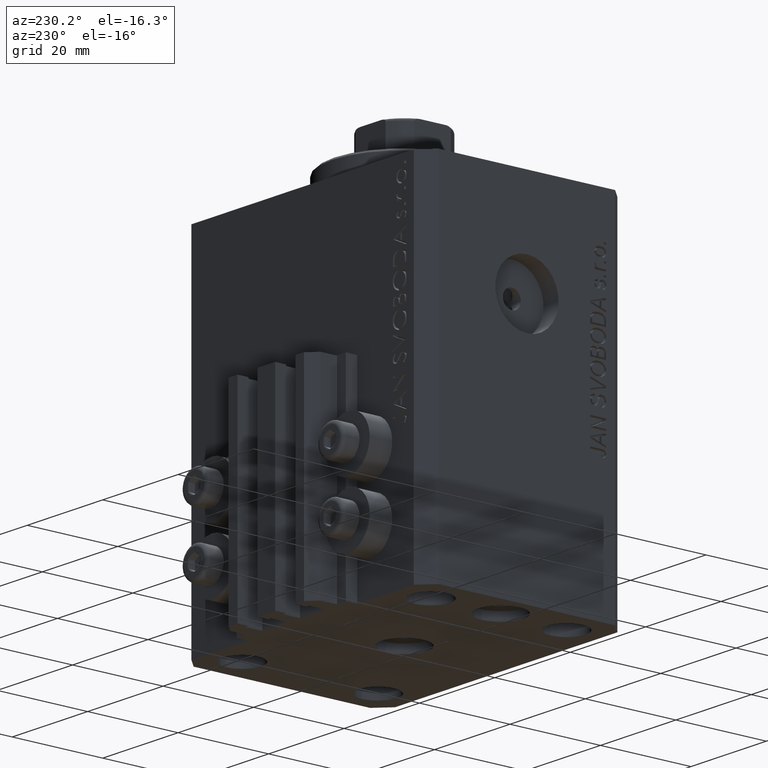
[diagram: clean part render]
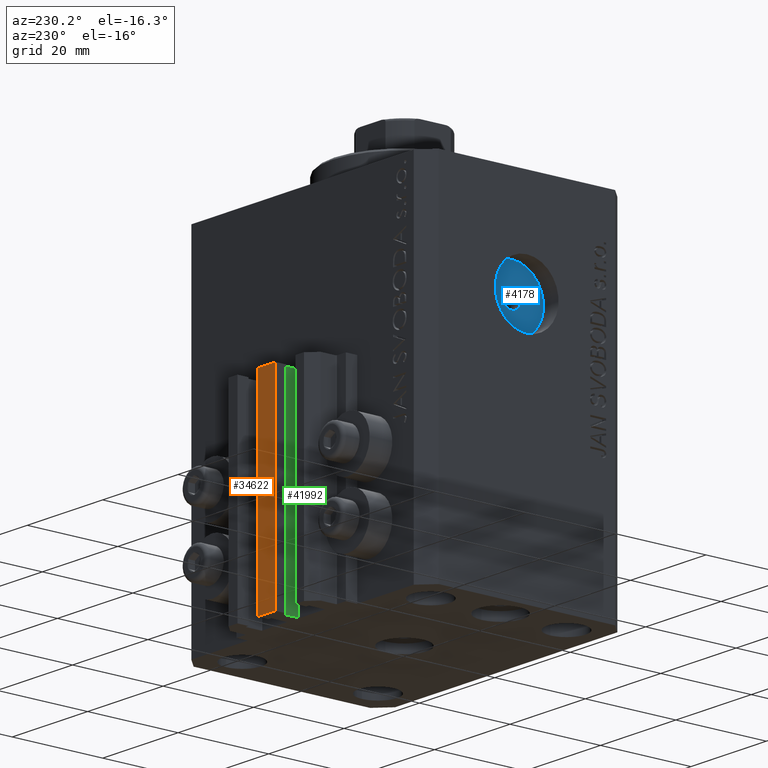
[diagram: same view with three faces highlighted in distinct colors, each labeled with its STEP entity id]
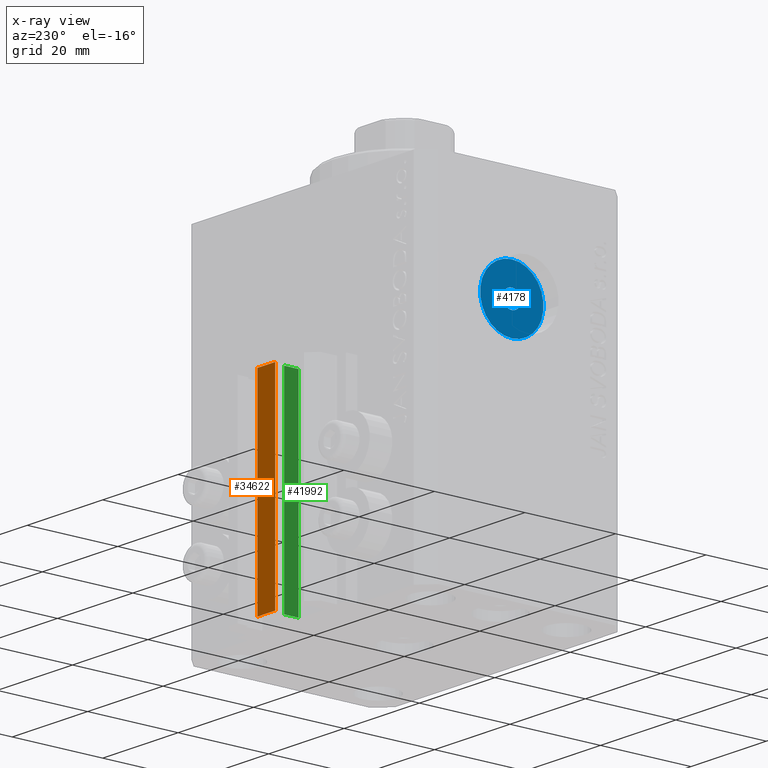
[diagram: x-ray of the same camera — body ghosted, the three highlighted faces saturated]
A machine part, auxiliary view with three faces highlighted in distinct colors.
The next image is the same camera in x-ray (body ghosted, the three faces saturated) — at least one of them is partly hidden behind the body in this view.
Their STEP definitions:

[orange] entity #34622 — the highlighted planar face has unit normal (0, -1, 0).
#437 = CARTESIAN_POINT ( 'NONE',  ( -2.350000000000003197, 30.49999999999949907, -77.00000000000000000 ) ) ;
#2167 = EDGE_CURVE ( 'NONE', #21555, #31573, #21137, .T. ) ;
#7940 = FACE_OUTER_BOUND ( 'NONE', #38259, .T. ) ;
#9980 = LINE ( 'NONE', #31324, #28495 ) ;
#12866 = DIRECTION ( 'NONE',  ( 0.000000000000000000, 0.000000000000000000, 1.000000000000000000 ) ) ;
#12957 = VECTOR ( 'NONE', #41328, 1000.000000000000000 ) ;
#13993 = ORIENTED_EDGE ( 'NONE', *, *, #17329, .F. ) ;
#14311 = AXIS2_PLACEMENT_3D ( 'NONE', #43476, #22333, #14427 ) ;
#14334 = VECTOR ( 'NONE', #15050, 1000.000000000000000 ) ;
#14427 = DIRECTION ( 'NONE',  ( 0.000000000000000000, -0.000000000000000000, -1.000000000000000000 ) ) ;
#15050 = DIRECTION ( 'NONE',  ( 1.000000000000000000, 0.000000000000000000, 0.000000000000000000 ) ) ;
#16099 = LINE ( 'NONE', #45392, #12957 ) ;
#17329 = EDGE_CURVE ( 'NONE', #24026, #21555, #29215, .T. ) ;
#18205 = EDGE_CURVE ( 'NONE', #24026, #33842, #9980, .T. ) ;
#18262 = PLANE ( 'NONE',  #14311 ) ;
#20188 = CARTESIAN_POINT ( 'NONE',  ( 2.349999999999999645, 30.49999999999949907, -77.00000000000000000 ) ) ;
#20572 = CARTESIAN_POINT ( 'NONE',  ( -2.350000000000003197, 30.49999999999949907, -77.00000000000000000 ) ) ;
#20721 = CARTESIAN_POINT ( 'NONE',  ( 2.349999999999999645, 30.49999999999949907, -33.00000000000000000 ) ) ;
#21137 = LINE ( 'NONE', #20188, #28900 ) ;
#21555 = VERTEX_POINT ( 'NONE', #45673 ) ;
#22333 = DIRECTION ( 'NONE',  ( 0.000000000000000000, -1.000000000000000000, 0.000000000000000000 ) ) ;
#24026 = VERTEX_POINT ( 'NONE', #20572 ) ;
#24800 = ORIENTED_EDGE ( 'NONE', *, *, #2167, .F. ) ;
#27949 = ORIENTED_EDGE ( 'NONE', *, *, #42260, .T. ) ;
#28495 = VECTOR ( 'NONE', #12866, 1000.000000000000000 ) ;
#28900 = VECTOR ( 'NONE', #35786, 1000.000000000000000 ) ;
#29215 = LINE ( 'NONE', #437, #14334 ) ;
#31324 = CARTESIAN_POINT ( 'NONE',  ( -2.350000000000003197, 30.49999999999949907, -77.00000000000000000 ) ) ;
#31573 = VERTEX_POINT ( 'NONE', #20721 ) ;
#33842 = VERTEX_POINT ( 'NONE', #37570 ) ;
#34179 = ORIENTED_EDGE ( 'NONE', *, *, #18205, .T. ) ;
#34622 = ADVANCED_FACE ( 'NONE', ( #7940 ), #18262, .F. ) ;
#35786 = DIRECTION ( 'NONE',  ( 0.000000000000000000, 0.000000000000000000, 1.000000000000000000 ) ) ;
#37570 = CARTESIAN_POINT ( 'NONE',  ( -2.350000000000003197, 30.49999999999949907, -33.00000000000000000 ) ) ;
#38259 = EDGE_LOOP ( 'NONE', ( #27949, #24800, #13993, #34179 ) ) ;
#41328 = DIRECTION ( 'NONE',  ( 1.000000000000000000, 0.000000000000000000, 0.000000000000000000 ) ) ;
#42260 = EDGE_CURVE ( 'NONE', #33842, #31573, #16099, .T. ) ;
#43476 = CARTESIAN_POINT ( 'NONE',  ( -2.350000000000003197, 30.49999999999949907, -77.00000000000000000 ) ) ;
#45392 = CARTESIAN_POINT ( 'NONE',  ( -2.350000000000003197, 30.49999999999949907, -33.00000000000000000 ) ) ;
#45673 = CARTESIAN_POINT ( 'NONE',  ( 2.349999999999999645, 30.49999999999949907, -77.00000000000000000 ) ) ;

[blue] entity #4178 — the highlighted planar face has unit normal (-1, 0, 0).
#475 = DIRECTION ( 'NONE',  ( 0.000000000000000000, 0.000000000000000000, 1.000000000000000000 ) ) ;
#722 = CARTESIAN_POINT ( 'NONE',  ( -28.49999999999650413, 0.000000000000000000, -22.00000000000000000 ) ) ;
#1180 = AXIS2_PLACEMENT_3D ( 'NONE', #13020, #35357, #27659 ) ;
#3655 = EDGE_LOOP ( 'NONE', ( #39875, #3782 ) ) ;
#3781 = AXIS2_PLACEMENT_3D ( 'NONE', #722, #36944, #475 ) ;
#3782 = ORIENTED_EDGE ( 'NONE', *, *, #7181, .T. ) ;
#3983 = VERTEX_POINT ( 'NONE', #45357 ) ;
#4178 = ADVANCED_FACE ( 'NONE', ( #39825, #5985 ), #17964, .T. ) ;
#4707 = DIRECTION ( 'NONE',  ( -1.000000000000000000, 0.000000000000000000, 0.000000000000000000 ) ) ;
#5985 = FACE_OUTER_BOUND ( 'NONE', #3655, .T. ) ;
#7181 = EDGE_CURVE ( 'NONE', #3983, #42311, #33631, .T. ) ;
#8598 = ORIENTED_EDGE ( 'NONE', *, *, #36782, .F. ) ;
#11969 = CARTESIAN_POINT ( 'NONE',  ( -28.49999999999650413, 2.449293598294706414E-16, -23.99999999999999645 ) ) ;
#13020 = CARTESIAN_POINT ( 'NONE',  ( -28.49999999999650413, 0.000000000000000000, -22.00000000000000000 ) ) ;
#13384 = DIRECTION ( 'NONE',  ( -1.000000000000000000, 0.000000000000000000, 0.000000000000000000 ) ) ;
#16059 = CARTESIAN_POINT ( 'NONE',  ( -28.49999999999650413, 0.000000000000000000, -22.00000000000000000 ) ) ;
#16998 = CARTESIAN_POINT ( 'NONE',  ( -28.49999999999650413, 0.000000000000000000, -22.00000000000000000 ) ) ;
#17927 = AXIS2_PLACEMENT_3D ( 'NONE', #16059, #13384, #34304 ) ;
#17964 = PLANE ( 'NONE',  #25136 ) ;
#18982 = CIRCLE ( 'NONE', #20498, 1.999999999999998224 ) ;
#19064 = CARTESIAN_POINT ( 'NONE',  ( -28.49999999999650413, 0.000000000000000000, -20.00000000000000000 ) ) ;
#19466 = CIRCLE ( 'NONE', #17927, 1.999999999999998224 ) ;
#19698 = CARTESIAN_POINT ( 'NONE',  ( -28.49999999999650413, 0.000000000000000000, -15.00000000000000000 ) ) ;
#20366 = EDGE_LOOP ( 'NONE', ( #39165, #8598 ) ) ;
#20498 = AXIS2_PLACEMENT_3D ( 'NONE', #37096, #4707, #23383 ) ;
#21319 = DIRECTION ( 'NONE',  ( -1.000000000000000000, 0.000000000000000000, 0.000000000000000000 ) ) ;
#23383 = DIRECTION ( 'NONE',  ( 0.000000000000000000, 0.000000000000000000, 1.000000000000000000 ) ) ;
#25136 = AXIS2_PLACEMENT_3D ( 'NONE', #16998, #21319, #32108 ) ;
#26090 = EDGE_CURVE ( 'NONE', #46411, #39298, #19466, .T. ) ;
#27659 = DIRECTION ( 'NONE',  ( 0.000000000000000000, 0.000000000000000000, 1.000000000000000000 ) ) ;
#28967 = EDGE_CURVE ( 'NONE', #42311, #3983, #38721, .T. ) ;
#32108 = DIRECTION ( 'NONE',  ( 0.000000000000000000, 0.000000000000000000, 1.000000000000000000 ) ) ;
#33631 = CIRCLE ( 'NONE', #3781, 6.999999999999999112 ) ;
#34304 = DIRECTION ( 'NONE',  ( 0.000000000000000000, 0.000000000000000000, 1.000000000000000000 ) ) ;
#35357 = DIRECTION ( 'NONE',  ( -1.000000000000000000, 0.000000000000000000, 0.000000000000000000 ) ) ;
#36782 = EDGE_CURVE ( 'NONE', #39298, #46411, #18982, .T. ) ;
#36944 = DIRECTION ( 'NONE',  ( -1.000000000000000000, 0.000000000000000000, 0.000000000000000000 ) ) ;
#37096 = CARTESIAN_POINT ( 'NONE',  ( -28.49999999999650413, 0.000000000000000000, -22.00000000000000000 ) ) ;
#38721 = CIRCLE ( 'NONE', #1180, 6.999999999999999112 ) ;
#39165 = ORIENTED_EDGE ( 'NONE', *, *, #26090, .F. ) ;
#39298 = VERTEX_POINT ( 'NONE', #11969 ) ;
#39825 = FACE_BOUND ( 'NONE', #20366, .T. ) ;
#39875 = ORIENTED_EDGE ( 'NONE', *, *, #28967, .T. ) ;
#42311 = VERTEX_POINT ( 'NONE', #19698 ) ;
#45357 = CARTESIAN_POINT ( 'NONE',  ( -28.49999999999650413, 8.572527594031474176E-16, -28.99999999999999645 ) ) ;
#46411 = VERTEX_POINT ( 'NONE', #19064 ) ;

[green] entity #41992 — the highlighted planar face has unit normal (-1, 0, 0).
#52 = VECTOR ( 'NONE', #40924, 1000.000000000000000 ) ;
#883 = DIRECTION ( 'NONE',  ( -1.000000000000000000, 6.776263578034385456E-17, 0.000000000000000000 ) ) ;
#1499 = VERTEX_POINT ( 'NONE', #8442 ) ;
#2074 = EDGE_LOOP ( 'NONE', ( #26803, #21648, #37008, #14375 ) ) ;
#3022 = CARTESIAN_POINT ( 'NONE',  ( -1.600000000000000533, 27.89999999999950120, -77.00000000000000000 ) ) ;
#4012 = CARTESIAN_POINT ( 'NONE',  ( -1.600000000000003197, 27.89999999999950120, -77.00000000000000000 ) ) ;
#7394 = LINE ( 'NONE', #47231, #20111 ) ;
#8442 = CARTESIAN_POINT ( 'NONE',  ( -1.600000000000000755, 24.69999999999949480, -33.00000000000000000 ) ) ;
#9949 = EDGE_CURVE ( 'NONE', #39479, #45037, #14278, .T. ) ;
#11651 = LINE ( 'NONE', #4012, #28939 ) ;
#14278 = LINE ( 'NONE', #3022, #52 ) ;
#14375 = ORIENTED_EDGE ( 'NONE', *, *, #22276, .T. ) ;
#14766 = LINE ( 'NONE', #29388, #26728 ) ;
#18654 = DIRECTION ( 'NONE',  ( 0.000000000000000000, 0.000000000000000000, 1.000000000000000000 ) ) ;
#20104 = CARTESIAN_POINT ( 'NONE',  ( -1.600000000000000755, 24.69999999999949480, -77.00000000000000000 ) ) ;
#20111 = VECTOR ( 'NONE', #18654, 1000.000000000000000 ) ;
#21648 = ORIENTED_EDGE ( 'NONE', *, *, #33477, .F. ) ;
#22276 = EDGE_CURVE ( 'NONE', #45037, #1499, #7394, .T. ) ;
#23401 = PLANE ( 'NONE',  #45188 ) ;
#26728 = VECTOR ( 'NONE', #29614, 1000.000000000000000 ) ;
#26803 = ORIENTED_EDGE ( 'NONE', *, *, #40963, .F. ) ;
#28939 = VECTOR ( 'NONE', #44085, 1000.000000000000000 ) ;
#29388 = CARTESIAN_POINT ( 'NONE',  ( -1.600000000000000533, 27.89999999999950120, -33.00000000000000000 ) ) ;
#29614 = DIRECTION ( 'NONE',  ( -6.776263578034385456E-17, -1.000000000000000000, 0.000000000000000000 ) ) ;
#30341 = FACE_OUTER_BOUND ( 'NONE', #2074, .T. ) ;
#30826 = CARTESIAN_POINT ( 'NONE',  ( -1.600000000000000533, 27.89999999999950120, -77.00000000000000000 ) ) ;
#33477 = EDGE_CURVE ( 'NONE', #39479, #41384, #11651, .T. ) ;
#35474 = CARTESIAN_POINT ( 'NONE',  ( -1.600000000000003197, 27.89999999999950120, -77.00000000000000000 ) ) ;
#37008 = ORIENTED_EDGE ( 'NONE', *, *, #9949, .T. ) ;
#38068 = DIRECTION ( 'NONE',  ( -6.776263578034385456E-17, -1.000000000000000000, 0.000000000000000000 ) ) ;
#39479 = VERTEX_POINT ( 'NONE', #35474 ) ;
#40924 = DIRECTION ( 'NONE',  ( -6.776263578034385456E-17, -1.000000000000000000, 0.000000000000000000 ) ) ;
#40963 = EDGE_CURVE ( 'NONE', #41384, #1499, #14766, .T. ) ;
#41384 = VERTEX_POINT ( 'NONE', #46354 ) ;
#41992 = ADVANCED_FACE ( 'NONE', ( #30341 ), #23401, .T. ) ;
#44085 = DIRECTION ( 'NONE',  ( 0.000000000000000000, 0.000000000000000000, 1.000000000000000000 ) ) ;
#45037 = VERTEX_POINT ( 'NONE', #20104 ) ;
#45188 = AXIS2_PLACEMENT_3D ( 'NONE', #30826, #883, #38068 ) ;
#46354 = CARTESIAN_POINT ( 'NONE',  ( -1.600000000000003197, 27.89999999999950120, -33.00000000000000000 ) ) ;
#47231 = CARTESIAN_POINT ( 'NONE',  ( -1.600000000000000755, 24.69999999999949480, -77.00000000000000000 ) ) ;